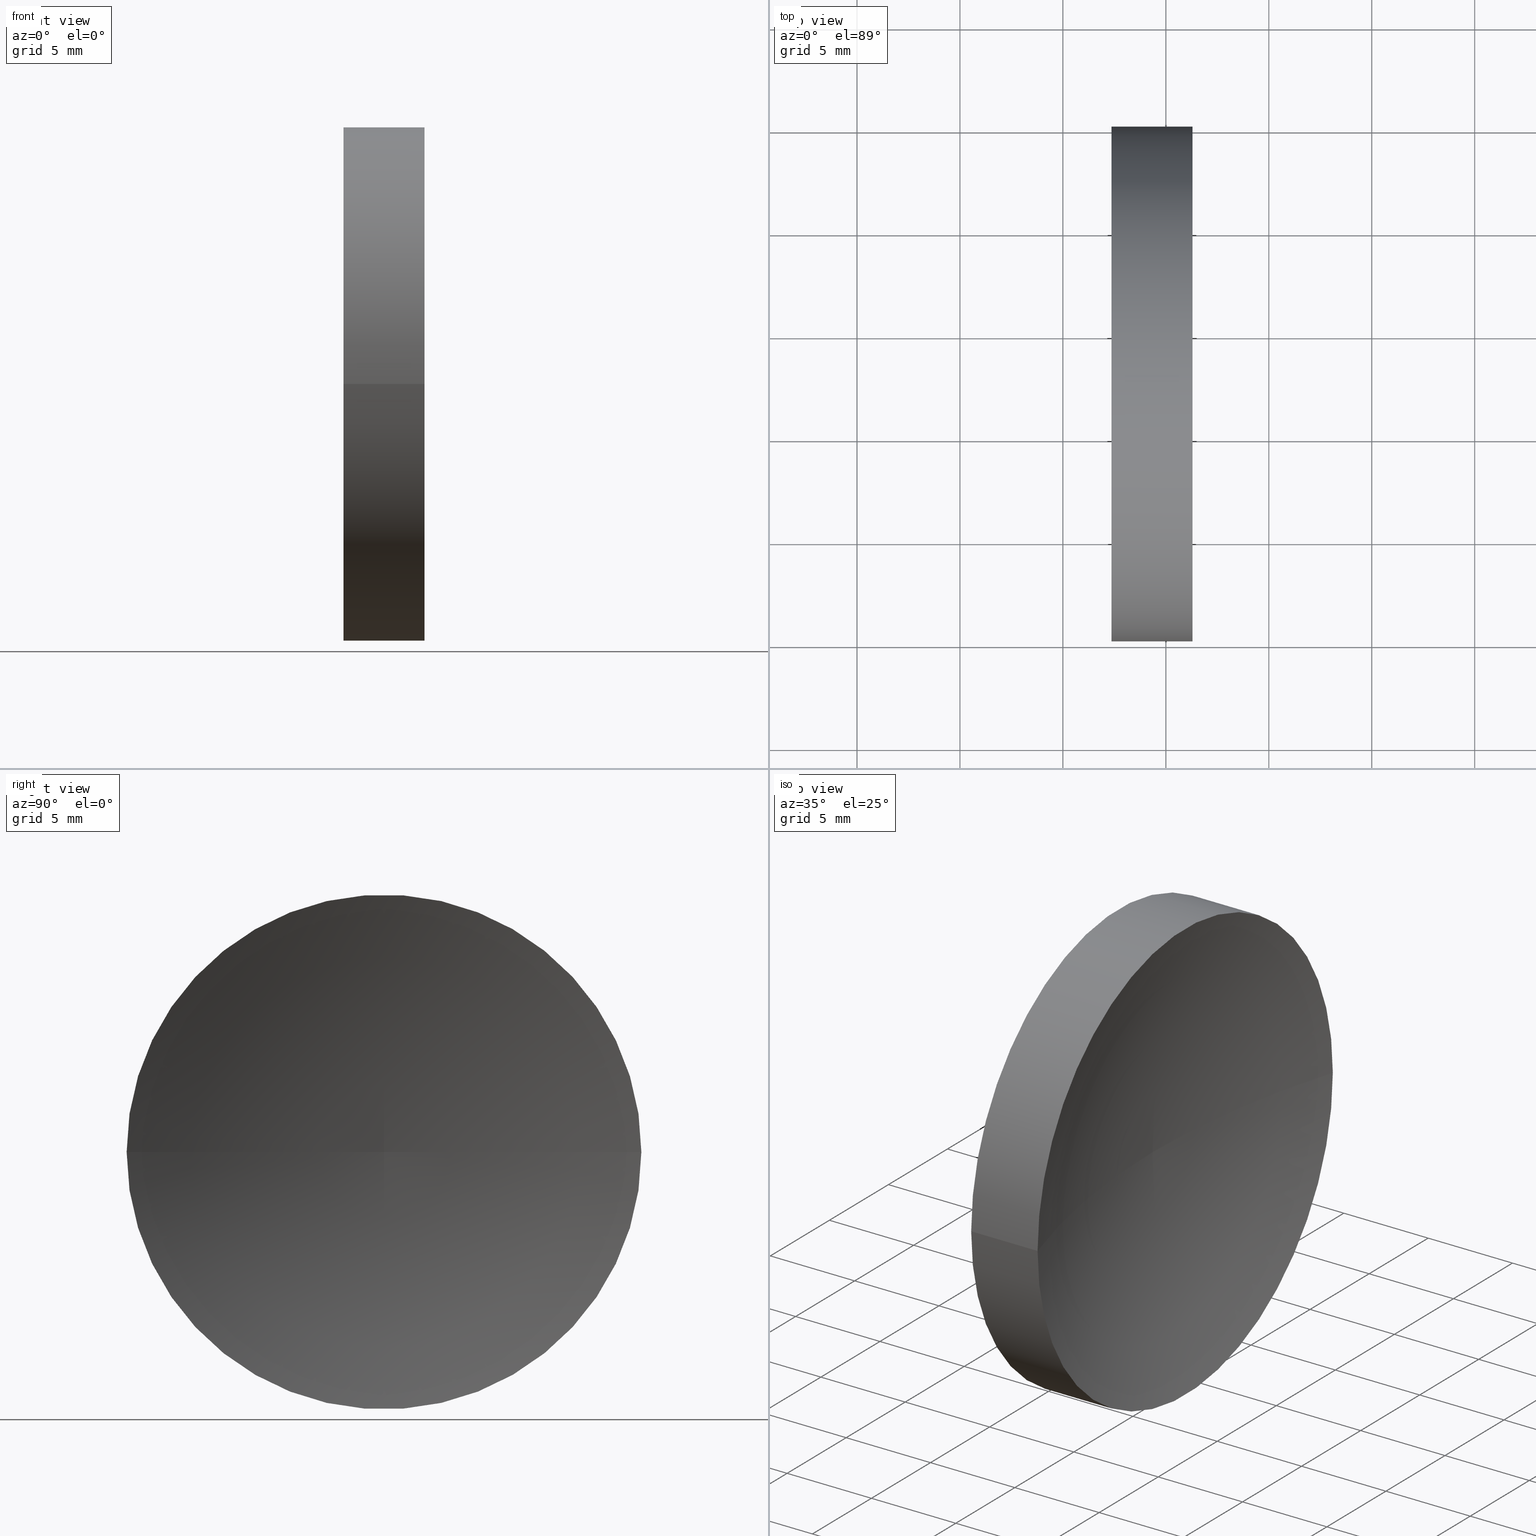
[diagram: canonical four-view strip — front | top / right | iso, engineering-drawing reading convention]
A machine part, canonical four-view strip (front | top / right | iso — engineering-drawing reading convention). The complete STEP part file that produces these views, byte-faithful:
ISO-10303-21;
HEADER;
FILE_DESCRIPTION (( 'STEP AP214' ),
    '1' );
FILE_NAME ('120154.STEP',
    '2019-06-20T06:12:05',
    ( '' ),
    ( '' ),
    'SwSTEP 2.0',
    'SolidWorks 2016',
    '' );
FILE_SCHEMA (( 'AUTOMOTIVE_DESIGN' ));
ENDSEC;

DATA;
#1 = CIRCLE ( 'NONE', #116, 41.29999999999999700 ) ;
#2 =( GEOMETRIC_REPRESENTATION_CONTEXT ( 3 ) GLOBAL_UNCERTAINTY_ASSIGNED_CONTEXT ( ( #126 ) ) GLOBAL_UNIT_ASSIGNED_CONTEXT ( ( #72, #47, #74 ) ) REPRESENTATION_CONTEXT ( 'NONE', 'WORKASPACE' ) );
#3 = PRODUCT ( '120154', '120154', '', ( #45 ) ) ;
#4 = VECTOR ( 'NONE', #89, 1000.000000000000000 ) ;
#5 = UNCERTAINTY_MEASURE_WITH_UNIT (LENGTH_MEASURE( 1.000000000000000100E-005 ), #147, 'distance_accuracy_value', 'NONE');
#6 = MECHANICAL_DESIGN_GEOMETRIC_PRESENTATION_REPRESENTATION (  '', ( #17 ), #9 ) ;
#7 = CARTESIAN_POINT ( 'NONE',  ( 100.6581901028490600, 32.57872591329307700, 0.0000000000000000000 ) ) ;
#8 = DIRECTION ( 'NONE',  ( 0.0000000000000000000, -0.0000000000000000000, -1.000000000000000000 ) ) ;
#9 =( GEOMETRIC_REPRESENTATION_CONTEXT ( 3 ) GLOBAL_UNCERTAINTY_ASSIGNED_CONTEXT ( ( #5 ) ) GLOBAL_UNIT_ASSIGNED_CONTEXT ( ( #147, #84, #97 ) ) REPRESENTATION_CONTEXT ( 'NONE', 'WORKASPACE' ) );
#10 = LINE ( 'NONE', #77, #4 ) ;
#11 =( GEOMETRIC_REPRESENTATION_CONTEXT ( 3 ) GLOBAL_UNCERTAINTY_ASSIGNED_CONTEXT ( ( #37 ) ) GLOBAL_UNIT_ASSIGNED_CONTEXT ( ( #15, #44, #112 ) ) REPRESENTATION_CONTEXT ( 'NONE', 'WORKASPACE' ) );
#12 = AXIS2_PLACEMENT_3D ( 'NONE', #143, #164, #106 ) ;
#13 = APPLICATION_CONTEXT ( 'automotive_design' ) ;
#14 = FILL_AREA_STYLE_COLOUR ( '', #55 ) ;
#15 =( LENGTH_UNIT ( ) NAMED_UNIT ( * ) SI_UNIT ( .MILLI., .METRE. ) );
#16 = VERTEX_POINT ( 'NONE', #52 ) ;
#17 = STYLED_ITEM ( 'NONE', ( #108 ), #71 ) ;
#18 = APPLICATION_PROTOCOL_DEFINITION ( 'draft international standard', 'automotive_design', 1998, #43 ) ;
#19 = PRODUCT_RELATED_PRODUCT_CATEGORY ( 'part', '', ( #3 ) ) ;
#20 = ORIENTED_EDGE ( 'NONE', *, *, #27, .F. ) ;
#21 = DIRECTION ( 'NONE',  ( -1.000000000000000000, 4.853228644174421400E-016, -0.0000000000000000000 ) ) ;
#22 = MECHANICAL_DESIGN_GEOMETRIC_PRESENTATION_REPRESENTATION (  '', ( #66 ), #2 ) ;
#23 = ORIENTED_EDGE ( 'NONE', *, *, #122, .F. ) ;
#24 = DIRECTION ( 'NONE',  ( 1.000000000000000000, -4.853228644174421400E-016, 0.0000000000000000000 ) ) ;
#25 = DIRECTION ( 'NONE',  ( -1.000000000000000000, 0.0000000000000000000, 0.0000000000000000000 ) ) ;
#26 = DIRECTION ( 'NONE',  ( 0.0000000000000000000, -1.000000000000000000, -1.224646799147353200E-016 ) ) ;
#27 = EDGE_CURVE ( 'NONE', #133, #165, #10, .T. ) ;
#28 = FILL_AREA_STYLE ('',( #62 ) ) ;
#29 = DIRECTION ( 'NONE',  ( -1.000000000000000000, 4.853228644174421400E-016, -0.0000000000000000000 ) ) ;
#30 = AXIS2_PLACEMENT_3D ( 'NONE', #159, #146, #88 ) ;
#31 = AXIS2_PLACEMENT_3D ( 'NONE', #117, #123, #95 ) ;
#32 = EDGE_CURVE ( 'NONE', #154, #16, #87, .T. ) ;
#33 = ORIENTED_EDGE ( 'NONE', *, *, #42, .T. ) ;
#34 = CARTESIAN_POINT ( 'NONE',  ( 57.35819015802111000, 32.57872591329309800, 0.0000000000000000000 ) ) ;
#35 = ORIENTED_EDGE ( 'NONE', *, *, #27, .T. ) ;
#36 = CARTESIAN_POINT ( 'NONE',  ( 57.35819015802111000, 32.57872591329309800, 0.0000000000000000000 ) ) ;
#37 = UNCERTAINTY_MEASURE_WITH_UNIT (LENGTH_MEASURE( 1.000000000000000100E-005 ), #15, 'distance_accuracy_value', 'NONE');
#38 = CARTESIAN_POINT ( 'NONE',  ( 100.6581901028490600, 32.58086067571052500, 0.0000000000000000000 ) ) ;
#39 = DIRECTION ( 'NONE',  ( -1.000000000000000000, 4.853228644174421400E-016, -0.0000000000000000000 ) ) ;
#40 = AXIS2_PLACEMENT_3D ( 'NONE', #93, #128, #54 ) ;
#41 = ORIENTED_EDGE ( 'NONE', *, *, #90, .F. ) ;
#42 = EDGE_CURVE ( 'NONE', #16, #165, #163, .T. ) ;
#43 = APPLICATION_CONTEXT ( 'automotive_design' ) ;
#44 =( NAMED_UNIT ( * ) PLANE_ANGLE_UNIT ( ) SI_UNIT ( $, .RADIAN. ) );
#45 = PRODUCT_CONTEXT ( 'NONE', #43, 'mechanical' ) ;
#46 = ADVANCED_FACE ( 'NONE', ( #68 ), #141, .T. ) ;
#47 =( NAMED_UNIT ( * ) PLANE_ANGLE_UNIT ( ) SI_UNIT ( $, .RADIAN. ) );
#48 = ADVANCED_FACE ( 'NONE', ( #144 ), #67, .F. ) ;
#49 = VERTEX_POINT ( 'NONE', #150 ) ;
#50 = EDGE_CURVE ( 'NONE', #133, #49, #134, .T. ) ;
#51 = FACE_OUTER_BOUND ( 'NONE', #145, .T. ) ;
#52 = CARTESIAN_POINT ( 'NONE',  ( 57.35819015802110200, 20.07872591329309800, 0.0000000000000000000 ) ) ;
#53 = PLANE ( 'NONE',  #56 ) ;
#54 = DIRECTION ( 'NONE',  ( -5.551115123125779700E-016, -1.000000000000000000, 0.0000000000000000000 ) ) ;
#55 = COLOUR_RGB ( '',1.000000000000000000, 1.000000000000000000, 1.000000000000000000 ) ;
#56 = AXIS2_PLACEMENT_3D ( 'NONE', #81, #24, #153 ) ;
#57 = DIRECTION ( 'NONE',  ( -4.853228644174421400E-016, -1.000000000000000000, 0.0000000000000000000 ) ) ;
#58 = PRODUCT_DEFINITION_CONTEXT ( 'detailed design', #13, 'design' ) ;
#59 = ORIENTED_EDGE ( 'NONE', *, *, #69, .T. ) ;
#60 = PRODUCT_DEFINITION ( 'δ֪', '', #138, #58 ) ;
#61 = ORIENTED_EDGE ( 'NONE', *, *, #69, .F. ) ;
#62 = FILL_AREA_STYLE_COLOUR ( '', #149 ) ;
#63 = ADVANCED_FACE ( 'NONE', ( #161 ), #73, .F. ) ;
#64 = DIRECTION ( 'NONE',  ( -5.551115123125779700E-016, -1.000000000000000000, 0.0000000000000000000 ) ) ;
#65 = ORIENTED_EDGE ( 'NONE', *, *, #50, .T. ) ;
#66 = STYLED_ITEM ( 'NONE', ( #94 ), #155 ) ;
#67 = TOROIDAL_SURFACE ( 'NONE', #31, -0.002134762417448137400, 41.29999999999999700 ) ;
#68 = FACE_OUTER_BOUND ( 'NONE', #120, .T. ) ;
#69 = EDGE_CURVE ( 'NONE', #154, #133, #111, .T. ) ;
#70 = ORIENTED_EDGE ( 'NONE', *, *, #42, .F. ) ;
#71 = ADVANCED_BREP_SHAPE_REPRESENTATION ( '120154', ( #155, #30 ), #11 ) ;
#72 =( LENGTH_UNIT ( ) NAMED_UNIT ( * ) SI_UNIT ( .MILLI., .METRE. ) );
#73 = TOROIDAL_SURFACE ( 'NONE', #76, -0.002134762417448137400, 41.29999999999999700 ) ;
#74 =( NAMED_UNIT ( * ) SI_UNIT ( $, .STERADIAN. ) SOLID_ANGLE_UNIT ( ) );
#75 = CYLINDRICAL_SURFACE ( 'NONE', #12, 12.50000000000000000 ) ;
#76 = AXIS2_PLACEMENT_3D ( 'NONE', #7, #39, #57 ) ;
#77 = CARTESIAN_POINT ( 'NONE',  ( 55.00739462442118800, 45.07872591329309100, 1.530808498934191500E-015 ) ) ;
#78 = CIRCLE ( 'NONE', #132, 12.50000000000000700 ) ;
#79 = PRODUCT_DEFINITION_SHAPE ( 'NONE', 'NONE',  #60 ) ;
#80 = CARTESIAN_POINT ( 'NONE',  ( 61.29594135633620800, 45.07872591329310600, 1.530808498934192300E-015 ) ) ;
#81 = CARTESIAN_POINT ( 'NONE',  ( 57.35819015802111700, 32.57872591329309100, 0.0000000000000000000 ) ) ;
#82 = CIRCLE ( 'NONE', #129, 12.49999999999999600 ) ;
#83 = SHAPE_DEFINITION_REPRESENTATION ( #79, #71 ) ;
#84 =( NAMED_UNIT ( * ) PLANE_ANGLE_UNIT ( ) SI_UNIT ( $, .RADIAN. ) );
#85 = ADVANCED_FACE ( 'NONE', ( #51 ), #75, .T. ) ;
#86 = SURFACE_STYLE_USAGE ( .BOTH. , #110 ) ;
#87 = LINE ( 'NONE', #101, #156 ) ;
#88 = DIRECTION ( 'NONE',  ( 1.000000000000000000, 0.0000000000000000000, 0.0000000000000000000 ) ) ;
#89 = DIRECTION ( 'NONE',  ( -1.000000000000000000, 4.853228644174421400E-016, -0.0000000000000000000 ) ) ;
#90 = EDGE_CURVE ( 'NONE', #165, #16, #82, .T. ) ;
#91 = ORIENTED_EDGE ( 'NONE', *, *, #90, .T. ) ;
#92 = CARTESIAN_POINT ( 'NONE',  ( 55.00739462442118100, 32.57872591329309800, 0.0000000000000000000 ) ) ;
#93 = CARTESIAN_POINT ( 'NONE',  ( 61.29594135633620100, 32.57872591329309800, 0.0000000000000000000 ) ) ;
#94 = PRESENTATION_STYLE_ASSIGNMENT (( #86 ) ) ;
#95 = DIRECTION ( 'NONE',  ( -4.853228644174421400E-016, -1.000000000000000000, 0.0000000000000000000 ) ) ;
#96 = ORIENTED_EDGE ( 'NONE', *, *, #125, .F. ) ;
#97 =( NAMED_UNIT ( * ) SI_UNIT ( $, .STERADIAN. ) SOLID_ANGLE_UNIT ( ) );
#98 = FACE_OUTER_BOUND ( 'NONE', #158, .T. ) ;
#99 = ADVANCED_FACE ( 'NONE', ( #98 ), #53, .F. ) ;
#100 = APPLICATION_PROTOCOL_DEFINITION ( 'draft international standard', 'automotive_design', 1998, #13 ) ;
#101 = CARTESIAN_POINT ( 'NONE',  ( 55.00739462442117400, 20.07872591329309500, 0.0000000000000000000 ) ) ;
#102 = ORIENTED_EDGE ( 'NONE', *, *, #32, .T. ) ;
#103 = DIRECTION ( 'NONE',  ( -1.000000000000000000, 4.853228644174421400E-016, -0.0000000000000000000 ) ) ;
#104 = DIRECTION ( 'NONE',  ( -5.551115123125782700E-016, -1.000000000000000000, 0.0000000000000000000 ) ) ;
#105 = ORIENTED_EDGE ( 'NONE', *, *, #125, .T. ) ;
#106 = DIRECTION ( 'NONE',  ( -5.551115123125782700E-016, -1.000000000000000000, 0.0000000000000000000 ) ) ;
#107 = CARTESIAN_POINT ( 'NONE',  ( 100.6581901028490600, 32.57659115087562900, -2.614329961467927100E-019 ) ) ;
#108 = PRESENTATION_STYLE_ASSIGNMENT (( #157 ) ) ;
#109 = SURFACE_STYLE_FILL_AREA ( #28 ) ;
#110 = SURFACE_SIDE_STYLE ('',( #124 ) ) ;
#111 = CIRCLE ( 'NONE', #40, 12.50000000000000700 ) ;
#112 =( NAMED_UNIT ( * ) SI_UNIT ( $, .STERADIAN. ) SOLID_ANGLE_UNIT ( ) );
#113 = SURFACE_SIDE_STYLE ('',( #109 ) ) ;
#114 = PRESENTATION_LAYER_ASSIGNMENT (  '', '', ( #17 ) ) ;
#115 = ORIENTED_EDGE ( 'NONE', *, *, #50, .F. ) ;
#116 = AXIS2_PLACEMENT_3D ( 'NONE', #38, #8, #25 ) ;
#117 = CARTESIAN_POINT ( 'NONE',  ( 100.6581901028490600, 32.57872591329307700, 0.0000000000000000000 ) ) ;
#118 = DIRECTION ( 'NONE',  ( -5.943490924618453600E-032, -1.224646799147353200E-016, 1.000000000000000000 ) ) ;
#119 = CARTESIAN_POINT ( 'NONE',  ( 61.29594135633619300, 20.07872591329308400, 0.0000000000000000000 ) ) ;
#120 = EDGE_LOOP ( 'NONE', ( #20, #105, #102, #41 ) ) ;
#121 = CARTESIAN_POINT ( 'NONE',  ( 61.29594135633620100, 32.57872591329309800, 0.0000000000000000000 ) ) ;
#122 = EDGE_CURVE ( 'NONE', #154, #49, #1, .T. ) ;
#123 = DIRECTION ( 'NONE',  ( -1.000000000000000000, 4.853228644174421400E-016, -0.0000000000000000000 ) ) ;
#124 = SURFACE_STYLE_FILL_AREA ( #136 ) ;
#125 = EDGE_CURVE ( 'NONE', #133, #154, #78, .T. ) ;
#126 = UNCERTAINTY_MEASURE_WITH_UNIT (LENGTH_MEASURE( 1.000000000000000100E-005 ), #72, 'distance_accuracy_value', 'NONE');
#127 = DIRECTION ( 'NONE',  ( -1.000000000000000000, 4.853228644174421400E-016, -0.0000000000000000000 ) ) ;
#128 = DIRECTION ( 'NONE',  ( -1.000000000000000000, 4.853228644174421400E-016, -0.0000000000000000000 ) ) ;
#129 = AXIS2_PLACEMENT_3D ( 'NONE', #36, #127, #142 ) ;
#130 = EDGE_LOOP ( 'NONE', ( #96, #65, #23 ) ) ;
#131 = AXIS2_PLACEMENT_3D ( 'NONE', #34, #152, #162 ) ;
#132 = AXIS2_PLACEMENT_3D ( 'NONE', #121, #29, #64 ) ;
#133 = VERTEX_POINT ( 'NONE', #80 ) ;
#134 = CIRCLE ( 'NONE', #140, 41.29999999999999700 ) ;
#135 = CARTESIAN_POINT ( 'NONE',  ( 57.35819015802111700, 45.07872591329309100, 1.530808498934191900E-015 ) ) ;
#136 = FILL_AREA_STYLE ('',( #14 ) ) ;
#137 = ORIENTED_EDGE ( 'NONE', *, *, #122, .T. ) ;
#138 = PRODUCT_DEFINITION_FORMATION_WITH_SPECIFIED_SOURCE ( '�κ�', '', #3, .NOT_KNOWN. ) ;
#139 = CLOSED_SHELL ( 'NONE', ( #85, #48, #63, #46, #99 ) ) ;
#140 = AXIS2_PLACEMENT_3D ( 'NONE', #107, #118, #26 ) ;
#141 = CYLINDRICAL_SURFACE ( 'NONE', #148, 12.50000000000000000 ) ;
#142 = DIRECTION ( 'NONE',  ( -5.551115123125784700E-016, -1.000000000000000000, 0.0000000000000000000 ) ) ;
#143 = CARTESIAN_POINT ( 'NONE',  ( 55.00739462442118100, 32.57872591329309800, 0.0000000000000000000 ) ) ;
#144 = FACE_OUTER_BOUND ( 'NONE', #130, .T. ) ;
#145 = EDGE_LOOP ( 'NONE', ( #59, #35, #70, #166 ) ) ;
#146 = DIRECTION ( 'NONE',  ( 0.0000000000000000000, 0.0000000000000000000, 1.000000000000000000 ) ) ;
#147 =( LENGTH_UNIT ( ) NAMED_UNIT ( * ) SI_UNIT ( .MILLI., .METRE. ) );
#148 = AXIS2_PLACEMENT_3D ( 'NONE', #92, #103, #104 ) ;
#149 = COLOUR_RGB ( '',1.000000000000000000, 1.000000000000000000, 1.000000000000000000 ) ;
#150 = CARTESIAN_POINT ( 'NONE',  ( 59.35819015802110200, 32.57872591329309800, 0.0000000000000000000 ) ) ;
#151 = EDGE_LOOP ( 'NONE', ( #115, #61, #137 ) ) ;
#152 = DIRECTION ( 'NONE',  ( -1.000000000000000000, 4.853228644174421400E-016, -0.0000000000000000000 ) ) ;
#153 = DIRECTION ( 'NONE',  ( 4.853228644174421400E-016, 1.000000000000000000, 0.0000000000000000000 ) ) ;
#154 = VERTEX_POINT ( 'NONE', #119 ) ;
#155 = MANIFOLD_SOLID_BREP ( '��ת1', #139 ) ;
#156 = VECTOR ( 'NONE', #21, 1000.000000000000000 ) ;
#157 = SURFACE_STYLE_USAGE ( .BOTH. , #113 ) ;
#158 = EDGE_LOOP ( 'NONE', ( #33, #91 ) ) ;
#159 = CARTESIAN_POINT ( 'NONE',  ( 0.0000000000000000000, 0.0000000000000000000, 0.0000000000000000000 ) ) ;
#160 = PRESENTATION_LAYER_ASSIGNMENT (  '', '', ( #66 ) ) ;
#161 = FACE_OUTER_BOUND ( 'NONE', #151, .T. ) ;
#162 = DIRECTION ( 'NONE',  ( -5.551115123125784700E-016, -1.000000000000000000, 0.0000000000000000000 ) ) ;
#163 = CIRCLE ( 'NONE', #131, 12.49999999999999600 ) ;
#164 = DIRECTION ( 'NONE',  ( -1.000000000000000000, 4.853228644174421400E-016, -0.0000000000000000000 ) ) ;
#165 = VERTEX_POINT ( 'NONE', #135 ) ;
#166 = ORIENTED_EDGE ( 'NONE', *, *, #32, .F. ) ;
ENDSEC;
END-ISO-10303-21;
